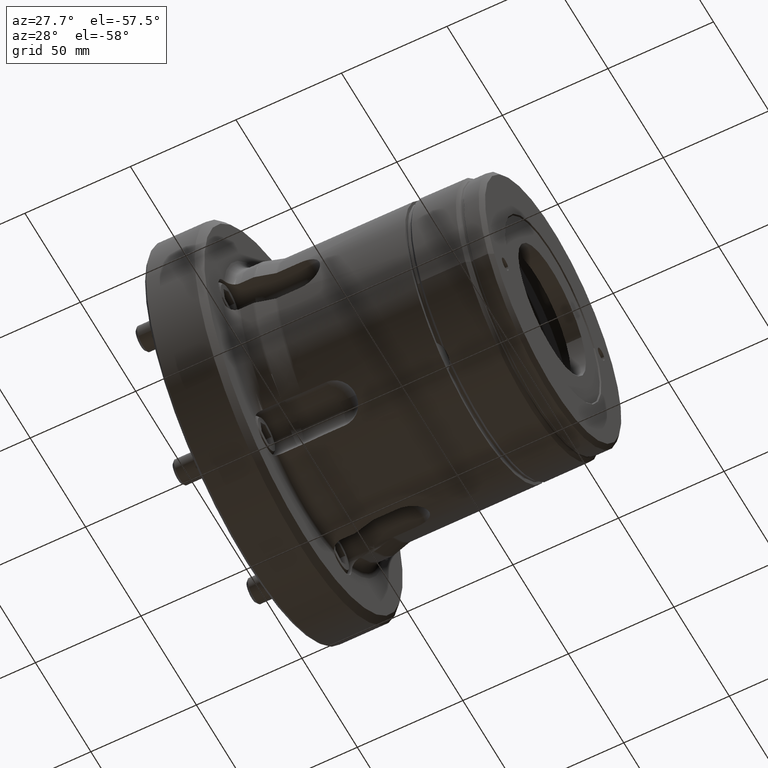
[diagram: clean part render]
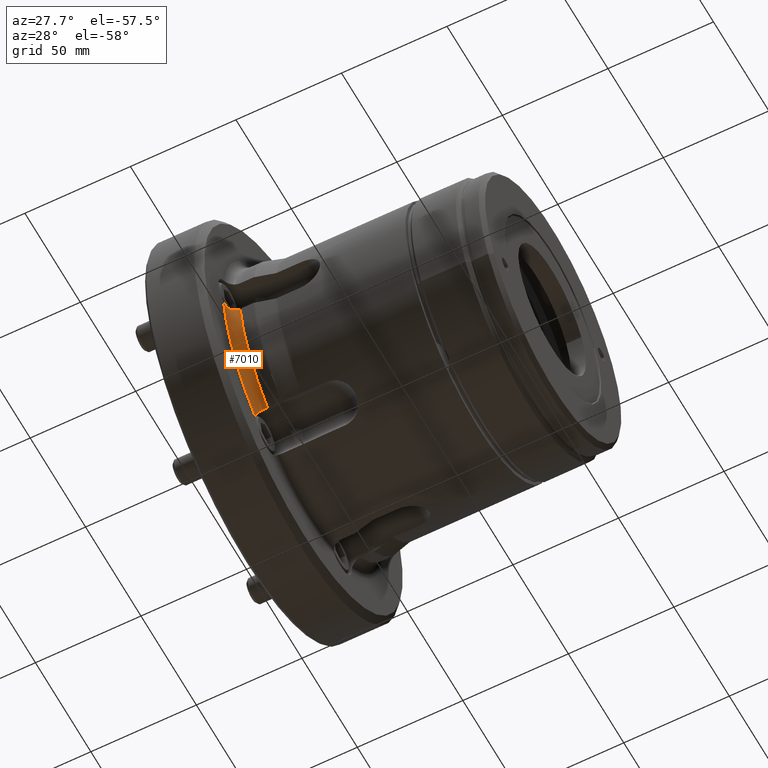
[diagram: same view with one face highlighted and labeled with its STEP entity id]
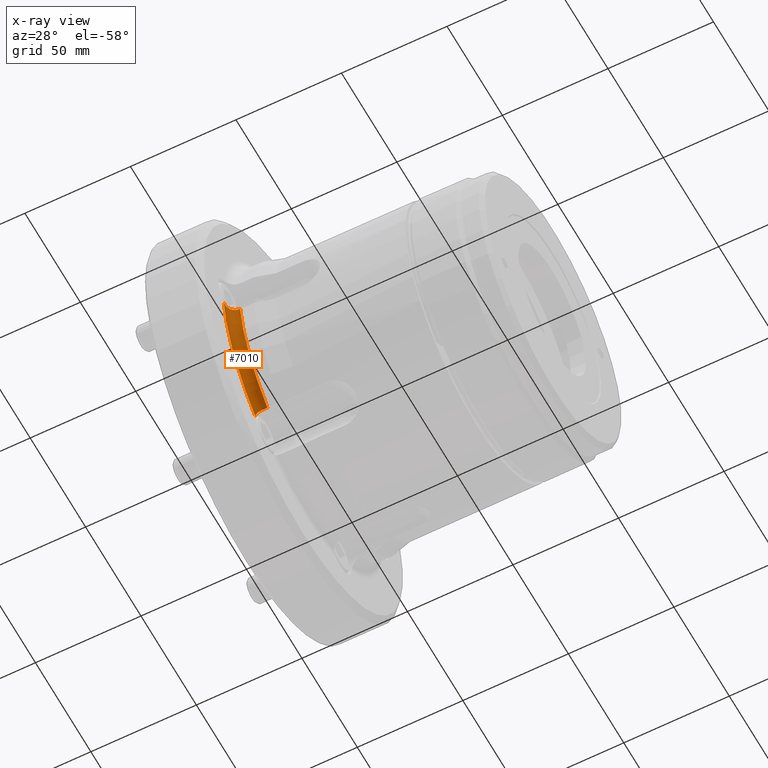
[diagram: x-ray of the same camera — body ghosted, the highlighted face saturated]
A machine part, auxiliary view. The second image highlights one B-rep face of the part: STEP entity #7010.
The next image is the same camera in x-ray: the body ghosted, the highlighted face saturated — about 0% of this face is hidden behind the body in this view.
In plain terms, the highlighted toroidal blend (fillet) surface has major radius 72.5 mm and minor (blend) radius 5 mm.
Its self-contained STEP definition (entity closure, byte-faithful):
#262 = DIRECTION ( 'NONE',  ( -1.000000000000000000, -0.0000000000000000000, -0.0000000000000000000 ) ) ;
#315 = CARTESIAN_POINT ( 'NONE',  ( 28.20177076734719900, -42.78406665701518800, -54.44495400976846600 ) ) ;
#353 = CARTESIAN_POINT ( 'NONE',  ( 27.00000000000001100, -71.70847824716658200, -8.662300430192626500 ) ) ;
#355 = EDGE_CURVE ( 'NONE', #5753, #10339, #475, .T. ) ;
#394 = CARTESIAN_POINT ( 'NONE',  ( 28.54383606996961100, -68.16879560088057100, -9.892252074017472200 ) ) ;
#475 = CIRCLE ( 'NONE', #11159, 67.50000000000000000 ) ;
#708 = CARTESIAN_POINT ( 'NONE',  ( 32.00000000000000000, 0.0000000000000000000, 0.0000000000000000000 ) ) ;
#952 = ORIENTED_EDGE ( 'NONE', *, *, #355, .T. ) ;
#1104 = EDGE_LOOP ( 'NONE', ( #6862, #952, #9896, #1274 ) ) ;
#1257 = CARTESIAN_POINT ( 'NONE',  ( 27.89509054676238600, -42.91571727644314600, -54.84543879984514800 ) ) ;
#1274 = ORIENTED_EDGE ( 'NONE', *, *, #10808, .F. ) ;
#1295 = CARTESIAN_POINT ( 'NONE',  ( 27.09523983853881300, -70.94203227065961000, -9.057310193892909900 ) ) ;
#1296 = CARTESIAN_POINT ( 'NONE',  ( 32.00000000000000000, -42.03770843487760100, -52.81175124481504200 ) ) ;
#1342 = CARTESIAN_POINT ( 'NONE',  ( 28.93435399805644100, -67.82214791974605800, -9.937388700993341900 ) ) ;
#1989 = B_SPLINE_CURVE_WITH_KNOTS ( 'NONE', 3,
 ( #5727, #6743, #2176, #8595, #3121, #9545, #4036, #10496, #4937, #11409, #5884, #315, #6783, #1257, #7705, #2216, #8639, #3165, #9586, #4068, #10536, #4979, #11445, #5920 ),
 .UNSPECIFIED., .F., .F.,
 ( 4, 2, 2, 2, 2, 2, 2, 2, 2, 2, 2, 4 ),
 ( 1.971937660582230400E-007, 0.001037991745048345800, 0.002075786296330633200, 0.003113580847612920700, 0.003632478123254064300, 0.004151375398895208200, 0.004670272674536351700, 0.005189169950177495300, 0.006226964501459791000, 0.006745861777100939700, 0.007264759052742086700, 0.008302553604024398900 ),
 .UNSPECIFIED. ) ;
#2176 = CARTESIAN_POINT ( 'NONE',  ( 31.30454472536384400, -42.05616762808016800, -52.84374111218126300 ) ) ;
#2216 = CARTESIAN_POINT ( 'NONE',  ( 27.54791455152059500, -43.07843856144063500, -55.42933635428205000 ) ) ;
#2255 = CARTESIAN_POINT ( 'NONE',  ( 27.20417832155518300, -70.47153198167917800, -9.263070836321814400 ) ) ;
#2296 = CARTESIAN_POINT ( 'NONE',  ( 29.65457317696965200, -67.33492862486414800, -9.980855186512325600 ) ) ;
#3011 = CARTESIAN_POINT ( 'NONE',  ( 27.00000000000000400, 0.0000000000000000000, 0.0000000000000000000 ) ) ;
#3121 = CARTESIAN_POINT ( 'NONE',  ( 30.29125802549531300, -42.17962881357259200, -53.06729449231546900 ) ) ;
#3165 = CARTESIAN_POINT ( 'NONE',  ( 27.25084032830480000, -43.23297255764526200, -56.22952471868184400 ) ) ;
#3197 = CARTESIAN_POINT ( 'NONE',  ( 27.40866035115534400, -69.85400311727161700, -9.495268247138016100 ) ) ;
#3216 = TOROIDAL_SURFACE ( 'NONE', #4083, 72.50000000000001400, 5.000000000000000900 ) ;
#3234 = CARTESIAN_POINT ( 'NONE',  ( 30.62546990424322900, -66.93771754835398700, -9.997438736650959600 ) ) ;
#3926 = DIRECTION ( 'NONE',  ( 0.0000000000000000000, 0.0000000000000000000, 1.000000000000000000 ) ) ;
#4036 = CARTESIAN_POINT ( 'NONE',  ( 29.36045259790276800, -42.38752670742844900, -53.47829876762205700 ) ) ;
#4068 = CARTESIAN_POINT ( 'NONE',  ( 27.12712057540921200, -43.29838581475614500, -56.73505403110198800 ) ) ;
#4083 = AXIS2_PLACEMENT_3D ( 'NONE', #708, #9925, #7160 ) ;
#4104 = CARTESIAN_POINT ( 'NONE',  ( 27.79674740732799200, -69.10881821603683800, -9.706742586268193300 ) ) ;
#4146 = CARTESIAN_POINT ( 'NONE',  ( 31.64840490851672400, -66.75517241379311900, -9.999847799079553600 ) ) ;
#4937 = CARTESIAN_POINT ( 'NONE',  ( 28.80462763644545300, -42.55982147487511500, -53.86605934458504000 ) ) ;
#4979 = CARTESIAN_POINT ( 'NONE',  ( 27.02235733912547400, -43.34993831848299800, -57.41881377999187200 ) ) ;
#5014 = CARTESIAN_POINT ( 'NONE',  ( 28.08971471784909800, -68.68355131644497600, -9.802343806975759600 ) ) ;
#5727 = CARTESIAN_POINT ( 'NONE',  ( 32.00000000000000000, -42.03770843487760100, -52.81175124481504200 ) ) ;
#5753 = VERTEX_POINT ( 'NONE', #1296 ) ;
#5840 = CARTESIAN_POINT ( 'NONE',  ( 32.00000000000000000, 0.0000000000000000000, 0.0000000000000000000 ) ) ;
#5884 = CARTESIAN_POINT ( 'NONE',  ( 28.42904382400497100, -42.69438376208759000, -54.20026267184917400 ) ) ;
#5916 = CARTESIAN_POINT ( 'NONE',  ( 27.02174693919773700, -71.40643170817331500, -8.829967356177228100 ) ) ;
#5920 = CARTESIAN_POINT ( 'NONE',  ( 27.00000000000000400, -43.34376935833564900, -58.11684487143117700 ) ) ;
#5957 = CARTESIAN_POINT ( 'NONE',  ( 28.42341830545589300, -68.29192908970222200, -9.873339239625559900 ) ) ;
#6243 = AXIS2_PLACEMENT_3D ( 'NONE', #3011, #9426, #3926 ) ;
#6736 = DIRECTION ( 'NONE',  ( 0.0000000000000000000, 0.0000000000000000000, 1.000000000000000000 ) ) ;
#6743 = CARTESIAN_POINT ( 'NONE',  ( 31.64914678709809700, -42.03770843487760800, -52.81175124481502800 ) ) ;
#6783 = CARTESIAN_POINT ( 'NONE',  ( 28.09499267393485400, -42.82862029673763300, -54.57389638188411100 ) ) ;
#6813 = CARTESIAN_POINT ( 'NONE',  ( 27.00000000000000400, -72.00254872563718300, -8.478382924369682900 ) ) ;
#6849 = CARTESIAN_POINT ( 'NONE',  ( 28.79884445059190100, -67.93422638318737900, -9.924247923551348500 ) ) ;
#6862 = ORIENTED_EDGE ( 'NONE', *, *, #7286, .F. ) ;
#7010 = ADVANCED_FACE ( 'NONE', ( #10576 ), #3216, .F. ) ;
#7044 = VERTEX_POINT ( 'NONE', #11838 ) ;
#7160 = DIRECTION ( 'NONE',  ( 0.0000000000000000000, 0.0000000000000000000, 1.000000000000000000 ) ) ;
#7286 = EDGE_CURVE ( 'NONE', #5753, #7044, #1989, .T. ) ;
#7705 = CARTESIAN_POINT ( 'NONE',  ( 27.80167041834653200, -42.95841877685084900, -54.98874431492421900 ) ) ;
#7743 = CARTESIAN_POINT ( 'NONE',  ( 27.12685723465902000, -70.78439289791506900, -9.129439712436122200 ) ) ;
#7780 = CARTESIAN_POINT ( 'NONE',  ( 29.35544543871542100, -67.51042163402381400, -9.969295730831795800 ) ) ;
#8595 = CARTESIAN_POINT ( 'NONE',  ( 30.62740125614211100, -42.12663858319014300, -52.97057839412815400 ) ) ;
#8639 = CARTESIAN_POINT ( 'NONE',  ( 27.41160549933507400, -43.14861449792630300, -55.73981392625088200 ) ) ;
#8673 = CARTESIAN_POINT ( 'NONE',  ( 27.24980878845603300, -70.31615672076729600, -9.324718454627269900 ) ) ;
#8714 = CARTESIAN_POINT ( 'NONE',  ( 30.28897877934171800, -67.04818953922814700, -9.994967166408004600 ) ) ;
#9010 = CIRCLE ( 'NONE', #6243, 72.50000000000001400 ) ;
#9240 = CARTESIAN_POINT ( 'NONE',  ( 27.00000000000000400, -72.00254872563718300, -8.478382924369682900 ) ) ;
#9426 = DIRECTION ( 'NONE',  ( -1.000000000000000000, -0.0000000000000000000, -0.0000000000000000000 ) ) ;
#9545 = CARTESIAN_POINT ( 'NONE',  ( 29.65883439109799700, -42.31014893279443400, -53.32135832283069700 ) ) ;
#9569 = CARTESIAN_POINT ( 'NONE',  ( 32.00000000000000000, -66.75517241379311900, -9.999847799079550000 ) ) ;
#9586 = CARTESIAN_POINT ( 'NONE',  ( 27.20445721305418700, -43.25767255474485000, -56.39754256025099000 ) ) ;
#9622 = CARTESIAN_POINT ( 'NONE',  ( 27.54364827087859500, -69.55112375414735500, -9.589792525100328600 ) ) ;
#9669 = CARTESIAN_POINT ( 'NONE',  ( 31.30327910621130600, -66.79225984828440200, -9.999838951017114400 ) ) ;
#9842 = EDGE_CURVE ( 'NONE', #11931, #10339, #11512, .T. ) ;
#9896 = ORIENTED_EDGE ( 'NONE', *, *, #9842, .F. ) ;
#9925 = DIRECTION ( 'NONE',  ( -1.000000000000000000, -0.0000000000000000000, -0.0000000000000000000 ) ) ;
#10339 = VERTEX_POINT ( 'NONE', #9569 ) ;
#10496 = CARTESIAN_POINT ( 'NONE',  ( 28.94015019664460200, -42.51525390797494500, -53.76277888800606100 ) ) ;
#10536 = CARTESIAN_POINT ( 'NONE',  ( 27.09591166367385600, -43.31453376057668700, -56.90509952566716800 ) ) ;
#10572 = CARTESIAN_POINT ( 'NONE',  ( 27.89013757070997500, -68.96283193629099600, -9.741663695859571700 ) ) ;
#10576 = FACE_OUTER_BOUND ( 'NONE', #1104, .T. ) ;
#10607 = CARTESIAN_POINT ( 'NONE',  ( 32.00000000000000000, -66.75517241379311900, -9.999847799079550000 ) ) ;
#10808 = EDGE_CURVE ( 'NONE', #7044, #11931, #9010, .T. ) ;
#11159 = AXIS2_PLACEMENT_3D ( 'NONE', #5840, #262, #6736 ) ;
#11409 = CARTESIAN_POINT ( 'NONE',  ( 28.54953724306885100, -42.64925179612026800, -54.08451323398688300 ) ) ;
#11445 = CARTESIAN_POINT ( 'NONE',  ( 27.00000000000045800, -43.35608064416133800, -57.76825159189862500 ) ) ;
#11485 = CARTESIAN_POINT ( 'NONE',  ( 28.19635683934661300, -68.54930605191536600, -9.828384053023137700 ) ) ;
#11512 = B_SPLINE_CURVE_WITH_KNOTS ( 'NONE', 3,
 ( #6813, #353, #5916, #1295, #7743, #2255, #8673, #3197, #9622, #4104, #10572, #5014, #11485, #5957, #394, #6849, #1342, #7780, #2296, #8714, #3234, #9669, #4146, #10607 ),
 .UNSPECIFIED., .F., .F.,
 ( 4, 2, 2, 2, 2, 2, 2, 2, 2, 2, 2, 4 ),
 ( 0.0005950709488750189800, 0.001633364342727521100, 0.002152511039653792100, 0.002671657736580063500, 0.003709951130432570100, 0.004229097827358826700, 0.004748244524285082800, 0.005267391221211338000, 0.005786537918137594200, 0.006824831311990130700, 0.007863124705842668100, 0.008901418099695215100 ),
 .UNSPECIFIED. ) ;
#11838 = CARTESIAN_POINT ( 'NONE',  ( 27.00000000000000400, -43.34376935833564900, -58.11684487143117700 ) ) ;
#11931 = VERTEX_POINT ( 'NONE', #9240 ) ;